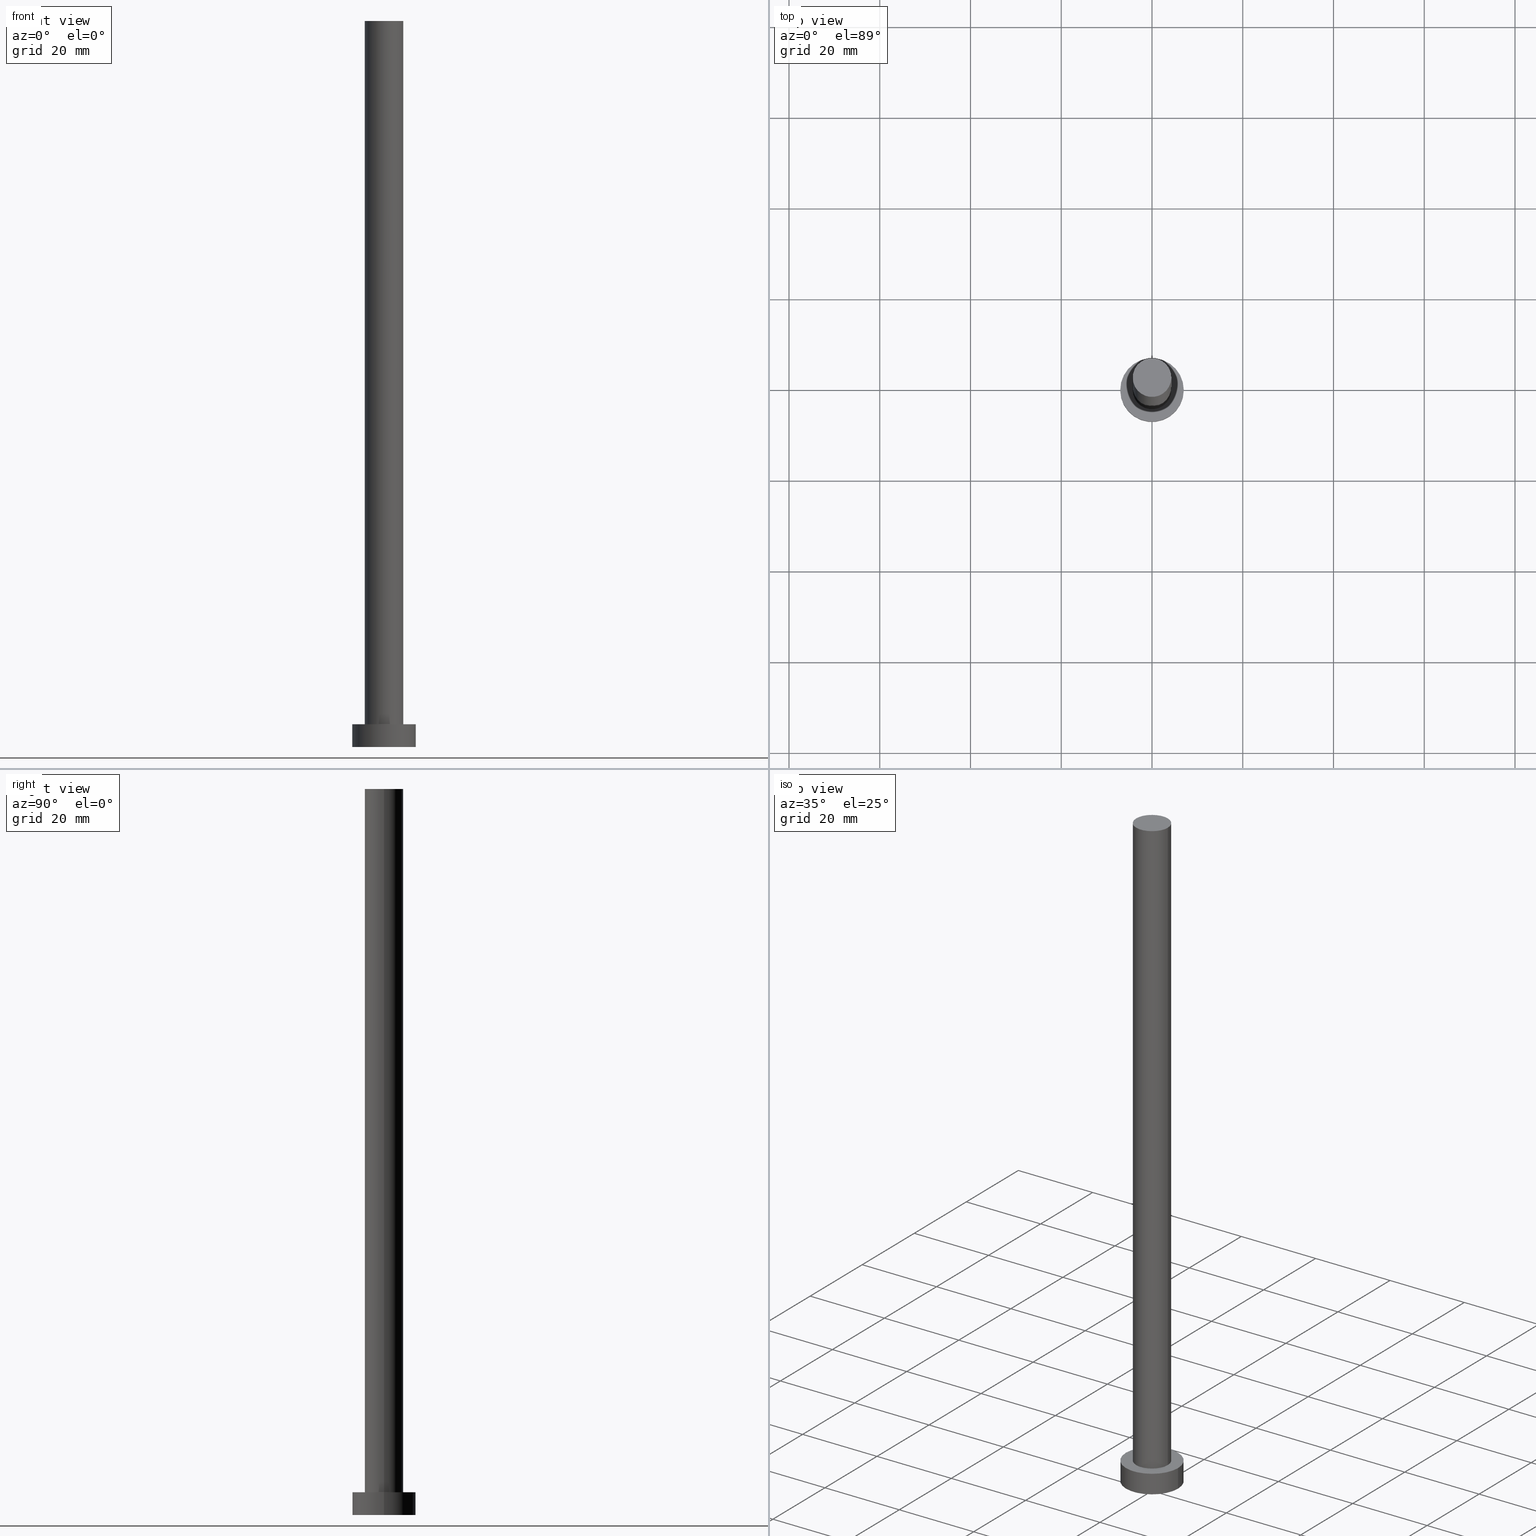
[diagram: canonical four-view strip — front | top / right | iso, engineering-drawing reading convention]
A machine part, canonical four-view strip (front | top / right | iso — engineering-drawing reading convention). The complete STEP part file that produces these views, byte-faithful:
ISO-10303-21;
HEADER;
FILE_DESCRIPTION (( 'STEP AP203' ),
    '1' );
FILE_NAME ('4055.STEP',
    '2026-02-06T12:39:14',
    ( '' ),
    ( '' ),
    'SwSTEP 2.0',
    'SolidWorks 2019',
    '' );
FILE_SCHEMA (( 'CONFIG_CONTROL_DESIGN' ));
ENDSEC;

DATA;
#1 = ORIENTED_EDGE ( 'NONE', *, *, #193, .T. ) ;
#2 = CARTESIAN_POINT ( 'NONE',  ( 0.000000000000000000, 0.000000000000000000, 160.0000000000000000 ) ) ;
#3 = VERTEX_POINT ( 'NONE', #176 ) ;
#4 = EDGE_CURVE ( 'NONE', #3, #19, #236, .T. ) ;
#5 = LOCAL_TIME ( 13, 39, 14.00000000000000000, #34 ) ;
#6 = ORIENTED_EDGE ( 'NONE', *, *, #142, .T. ) ;
#7 = DIRECTION ( 'NONE',  ( 0.000000000000000000, 0.000000000000000000, 1.000000000000000000 ) ) ;
#8 = DIRECTION ( 'NONE',  ( 0.000000000000000000, 0.000000000000000000, 1.000000000000000000 ) ) ;
#9 = EDGE_CURVE ( 'NONE', #121, #61, #216, .T. ) ;
#10 = CARTESIAN_POINT ( 'NONE',  ( 0.000000000000000000, 0.000000000000000000, 0.000000000000000000 ) ) ;
#11 = DIRECTION ( 'NONE',  ( -0.000000000000000000, -0.000000000000000000, -1.000000000000000000 ) ) ;
#12 = CIRCLE ( 'NONE', #212, 4.250000000000000000 ) ;
#13 = CARTESIAN_POINT ( 'NONE',  ( 7.000000000000000000, 8.572527594031473190E-16, 5.000000000000000000 ) ) ;
#14 = CARTESIAN_POINT ( 'NONE',  ( -4.250000000000000000, 0.000000000000000000, 160.0000000000000000 ) ) ;
#15 = SECURITY_CLASSIFICATION_LEVEL ( 'unclassified' ) ;
#16 = CIRCLE ( 'NONE', #112, 7.000000000000000000 ) ;
#17 = APPROVAL_DATE_TIME ( #192, #31 ) ;
#18 = EDGE_CURVE ( 'NONE', #153, #19, #215, .T. ) ;
#19 = VERTEX_POINT ( 'NONE', #198 ) ;
#20 = LOCAL_TIME ( 13, 39, 14.00000000000000000, #58 ) ;
#21 = ORIENTED_EDGE ( 'NONE', *, *, #203, .F. ) ;
#22 = CC_DESIGN_DATE_AND_TIME_ASSIGNMENT ( #159, #29, ( #96 ) ) ;
#23 = ORIENTED_EDGE ( 'NONE', *, *, #150, .F. ) ;
#24 = ORIENTED_EDGE ( 'NONE', *, *, #4, .T. ) ;
#25 = AXIS2_PLACEMENT_3D ( 'NONE', #131, #210, #47 ) ;
#26 = APPROVAL_ROLE ( '' ) ;
#27 = VERTEX_POINT ( 'NONE', #99 ) ;
#28 = DIRECTION ( 'NONE',  ( -0.000000000000000000, -0.000000000000000000, -1.000000000000000000 ) ) ;
#29 = DATE_TIME_ROLE ( 'creation_date' ) ;
#30 = LINE ( 'NONE', #243, #63 ) ;
#31 = APPROVAL ( #115, 'NEUR�EN�' ) ;
#32 = DIRECTION ( 'NONE',  ( 1.000000000000000000, 0.000000000000000000, 0.000000000000000000 ) ) ;
#33 = FACE_OUTER_BOUND ( 'NONE', #40, .T. ) ;
#34 = COORDINATED_UNIVERSAL_TIME_OFFSET ( 1, 0, .AHEAD. ) ;
#35 = CARTESIAN_POINT ( 'NONE',  ( 0.000000000000000000, 0.000000000000000000, 5.000000000000000000 ) ) ;
#36 = CLOSED_SHELL ( 'NONE', ( #62, #252, #221, #68, #117, #124, #232 ) ) ;
#37 = AXIS2_PLACEMENT_3D ( 'NONE', #103, #50, #225 ) ;
#38 = CYLINDRICAL_SURFACE ( 'NONE', #104, 7.000000000000000000 ) ;
#39 = EDGE_LOOP ( 'NONE', ( #141, #6 ) ) ;
#40 = EDGE_LOOP ( 'NONE', ( #239, #177, #1, #120 ) ) ;
#41 = ORIENTED_EDGE ( 'NONE', *, *, #178, .T. ) ;
#42 = ORIENTED_EDGE ( 'NONE', *, *, #87, .F. ) ;
#43 = AXIS2_PLACEMENT_3D ( 'NONE', #209, #187, #74 ) ;
#44 = PERSON_AND_ORGANIZATION ( #127, #102 ) ;
#45 = ORIENTED_EDGE ( 'NONE', *, *, #9, .F. ) ;
#46 = AXIS2_PLACEMENT_3D ( 'NONE', #10, #73, #245 ) ;
#47 = DIRECTION ( 'NONE',  ( 1.000000000000000000, 0.000000000000000000, -0.000000000000000000 ) ) ;
#48 = APPLICATION_CONTEXT ( 'configuration controlled 3d designs of mechanical parts and assemblies' ) ;
#49 = DIRECTION ( 'NONE',  ( 0.000000000000000000, 0.000000000000000000, 1.000000000000000000 ) ) ;
#50 = DIRECTION ( 'NONE',  ( 0.000000000000000000, 0.000000000000000000, 1.000000000000000000 ) ) ;
#51 = PERSON_AND_ORGANIZATION ( #127, #102 ) ;
#52 = CARTESIAN_POINT ( 'NONE',  ( 0.000000000000000000, 0.000000000000000000, 160.0000000000000000 ) ) ;
#53 = AXIS2_PLACEMENT_3D ( 'NONE', #2, #80, #71 ) ;
#54 = CALENDAR_DATE ( 2026, 6, 2 ) ;
#55 = PERSON_AND_ORGANIZATION ( #127, #102 ) ;
#56 = SHAPE_DEFINITION_REPRESENTATION ( #60, #138 ) ;
#57 = DESIGN_CONTEXT ( 'detailed design', #106, 'design' ) ;
#58 = COORDINATED_UNIVERSAL_TIME_OFFSET ( 1, 0, .AHEAD. ) ;
#59 = DIRECTION ( 'NONE',  ( 0.000000000000000000, 0.000000000000000000, 1.000000000000000000 ) ) ;
#60 = PRODUCT_DEFINITION_SHAPE ( 'NONE', 'NONE',  #96 ) ;
#61 = VERTEX_POINT ( 'NONE', #79 ) ;
#62 = ADVANCED_FACE ( 'NONE', ( #181 ), #82, .T. ) ;
#63 = VECTOR ( 'NONE', #11, 1000.000000000000000 ) ;
#64 = ORIENTED_EDGE ( 'NONE', *, *, #170, .T. ) ;
#65 = EDGE_LOOP ( 'NONE', ( #145, #69 ) ) ;
#66 = CC_DESIGN_PERSON_AND_ORGANIZATION_ASSIGNMENT ( #133, #213, ( #123 ) ) ;
#67 = AXIS2_PLACEMENT_3D ( 'NONE', #185, #28, #247 ) ;
#68 = ADVANCED_FACE ( 'NONE', ( #89, #93 ), #149, .T. ) ;
#69 = ORIENTED_EDGE ( 'NONE', *, *, #193, .F. ) ;
#70 =( NAMED_UNIT ( * ) SI_UNIT ( $, .STERADIAN. ) SOLID_ANGLE_UNIT ( ) );
#71 = DIRECTION ( 'NONE',  ( -1.000000000000000000, 0.000000000000000000, 0.000000000000000000 ) ) ;
#72 = AXIS2_PLACEMENT_3D ( 'NONE', #52, #249, #208 ) ;
#73 = DIRECTION ( 'NONE',  ( 0.000000000000000000, 0.000000000000000000, 1.000000000000000000 ) ) ;
#74 = DIRECTION ( 'NONE',  ( 1.000000000000000000, 0.000000000000000000, -0.000000000000000000 ) ) ;
#75 =( NAMED_UNIT ( * ) PLANE_ANGLE_UNIT ( ) SI_UNIT ( $, .RADIAN. ) );
#76 = APPROVAL_PERSON_ORGANIZATION ( #107, #77, #95 ) ;
#77 = APPROVAL ( #186, 'NEUR�EN�' ) ;
#78 = CARTESIAN_POINT ( 'NONE',  ( 0.000000000000000000, 0.000000000000000000, 5.000000000000000000 ) ) ;
#79 = CARTESIAN_POINT ( 'NONE',  ( 7.000000000000000000, 8.572527594031473190E-16, 0.000000000000000000 ) ) ;
#80 = DIRECTION ( 'NONE',  ( -0.000000000000000000, -0.000000000000000000, -1.000000000000000000 ) ) ;
#81 = CIRCLE ( 'NONE', #37, 4.250000000000000000 ) ;
#82 = CYLINDRICAL_SURFACE ( 'NONE', #53, 4.250000000000000000 ) ;
#83 = LOCAL_TIME ( 13, 39, 14.00000000000000000, #230 ) ;
#84 = MECHANICAL_CONTEXT ( 'NONE', #48, 'mechanical' ) ;
#85 = APPROVAL_STATUS ( 'not_yet_approved' ) ;
#86 = EDGE_LOOP ( 'NONE', ( #45, #42, #64, #41 ) ) ;
#87 = EDGE_CURVE ( 'NONE', #154, #121, #126, .T. ) ;
#88 = FACE_OUTER_BOUND ( 'NONE', #184, .T. ) ;
#89 = FACE_BOUND ( 'NONE', #122, .T. ) ;
#90 = DIRECTION ( 'NONE',  ( 1.000000000000000000, 0.000000000000000000, -0.000000000000000000 ) ) ;
#91 = DIRECTION ( 'NONE',  ( 0.000000000000000000, 0.000000000000000000, 1.000000000000000000 ) ) ;
#92 = APPROVAL_DATE_TIME ( #183, #241 ) ;
#93 = FACE_OUTER_BOUND ( 'NONE', #39, .T. ) ;
#94 = CALENDAR_DATE ( 2026, 6, 2 ) ;
#95 = APPROVAL_ROLE ( '' ) ;
#96 = PRODUCT_DEFINITION ( 'NEZN�M�', '', #123, #57 ) ;
#97 = APPROVAL_PERSON_ORGANIZATION ( #196, #31, #135 ) ;
#98 = EDGE_LOOP ( 'NONE', ( #140, #237, #234, #23 ) ) ;
#99 = CARTESIAN_POINT ( 'NONE',  ( -7.000000000000000000, 0.000000000000000000, 0.000000000000000000 ) ) ;
#100 = DIRECTION ( 'NONE',  ( 1.000000000000000000, 0.000000000000000000, 0.000000000000000000 ) ) ;
#101 = CARTESIAN_POINT ( 'NONE',  ( 7.000000000000000000, 8.572527594031473190E-16, 5.000000000000000000 ) ) ;
#102 = ORGANIZATION ( 'NEUR�EN�', 'NEUR�EN�', '' ) ;
#103 = CARTESIAN_POINT ( 'NONE',  ( 0.000000000000000000, 0.000000000000000000, 5.000000000000000000 ) ) ;
#104 = AXIS2_PLACEMENT_3D ( 'NONE', #204, #110, #128 ) ;
#105 = APPLICATION_PROTOCOL_DEFINITION ( 'international standard', 'config_control_design', 1994, #106 ) ;
#106 = APPLICATION_CONTEXT ( 'configuration controlled 3d designs of mechanical parts and assemblies' ) ;
#107 = PERSON_AND_ORGANIZATION ( #127, #102 ) ;
#108 = DIRECTION ( 'NONE',  ( 1.000000000000000000, 0.000000000000000000, 0.000000000000000000 ) ) ;
#109 = LINE ( 'NONE', #188, #143 ) ;
#110 = DIRECTION ( 'NONE',  ( -0.000000000000000000, -0.000000000000000000, -1.000000000000000000 ) ) ;
#111 = CALENDAR_DATE ( 2026, 6, 2 ) ;
#112 = AXIS2_PLACEMENT_3D ( 'NONE', #113, #49, #162 ) ;
#113 = CARTESIAN_POINT ( 'NONE',  ( 0.000000000000000000, 0.000000000000000000, 5.000000000000000000 ) ) ;
#114 = APPLICATION_PROTOCOL_DEFINITION ( 'international standard', 'config_control_design', 1994, #48 ) ;
#115 = APPROVAL_STATUS ( 'not_yet_approved' ) ;
#116 = PERSON_AND_ORGANIZATION_ROLE ( 'classification_officer' ) ;
#117 = ADVANCED_FACE ( 'NONE', ( #246 ), #165, .F. ) ;
#118 = VECTOR ( 'NONE', #119, 1000.000000000000000 ) ;
#119 = DIRECTION ( 'NONE',  ( -0.000000000000000000, -0.000000000000000000, -1.000000000000000000 ) ) ;
#120 = ORIENTED_EDGE ( 'NONE', *, *, #170, .F. ) ;
#121 = VERTEX_POINT ( 'NONE', #13 ) ;
#122 = EDGE_LOOP ( 'NONE', ( #223, #155 ) ) ;
#123 = PRODUCT_DEFINITION_FORMATION_WITH_SPECIFIED_SOURCE ( 'LIBOVOLN�', '', #156, .NOT_KNOWN. ) ;
#124 = ADVANCED_FACE ( 'NONE', ( #168 ), #228, .T. ) ;
#125 = PERSON_AND_ORGANIZATION_ROLE ( 'design_owner' ) ;
#126 = CIRCLE ( 'NONE', #219, 7.000000000000000000 ) ;
#127 = PERSON ( 'NEUR�EN�', 'NEUR�EN�', 'NEUR�EN�', ('NEUR�EN�'), ('NEUR�EN�'), ('NEUR�EN�') ) ;
#128 = DIRECTION ( 'NONE',  ( -1.000000000000000000, 0.000000000000000000, 0.000000000000000000 ) ) ;
#129 = CARTESIAN_POINT ( 'NONE',  ( -7.000000000000000000, 0.000000000000000000, 5.000000000000000000 ) ) ;
#130 = PRODUCT_RELATED_PRODUCT_CATEGORY ( 'detail', '', ( #156 ) ) ;
#131 = CARTESIAN_POINT ( 'NONE',  ( 0.000000000000000000, 0.000000000000000000, 160.0000000000000000 ) ) ;
#132 = CARTESIAN_POINT ( 'NONE',  ( 0.000000000000000000, 0.000000000000000000, 160.0000000000000000 ) ) ;
#133 = PERSON_AND_ORGANIZATION ( #127, #102 ) ;
#134 = CC_DESIGN_SECURITY_CLASSIFICATION ( #190, ( #123 ) ) ;
#135 = APPROVAL_ROLE ( '' ) ;
#136 = EDGE_CURVE ( 'NONE', #153, #201, #206, .T. ) ;
#137 = CC_DESIGN_APPROVAL ( #241, ( #96 ) ) ;
#138 = ADVANCED_BREP_SHAPE_REPRESENTATION ( '4055', ( #205, #214 ), #164 ) ;
#139 = DIRECTION ( 'NONE',  ( -0.000000000000000000, -0.000000000000000000, -1.000000000000000000 ) ) ;
#140 = ORIENTED_EDGE ( 'NONE', *, *, #136, .F. ) ;
#141 = ORIENTED_EDGE ( 'NONE', *, *, #87, .T. ) ;
#142 = EDGE_CURVE ( 'NONE', #121, #154, #16, .T. ) ;
#143 = VECTOR ( 'NONE', #207, 1000.000000000000000 ) ;
#144 = DIRECTION ( 'NONE',  ( 0.000000000000000000, 0.000000000000000000, 1.000000000000000000 ) ) ;
#145 = ORIENTED_EDGE ( 'NONE', *, *, #178, .F. ) ;
#146 = DIRECTION ( 'NONE',  ( 1.000000000000000000, 0.000000000000000000, 0.000000000000000000 ) ) ;
#147 = CARTESIAN_POINT ( 'NONE',  ( 4.250000000000000000, 5.204748896376250699E-16, 160.0000000000000000 ) ) ;
#148 = CARTESIAN_POINT ( 'NONE',  ( 0.000000000000000000, 0.000000000000000000, 160.0000000000000000 ) ) ;
#149 = PLANE ( 'NONE',  #175 ) ;
#150 = EDGE_CURVE ( 'NONE', #201, #3, #30, .T. ) ;
#151 = DATE_TIME_ROLE ( 'classification_date' ) ;
#152 = CIRCLE ( 'NONE', #194, 7.000000000000000000 ) ;
#153 = VERTEX_POINT ( 'NONE', #147 ) ;
#154 = VERTEX_POINT ( 'NONE', #129 ) ;
#155 = ORIENTED_EDGE ( 'NONE', *, *, #199, .F. ) ;
#156 = PRODUCT ( '4055', '4055', '', ( #84 ) ) ;
#157 = DIRECTION ( 'NONE',  ( 1.000000000000000000, 0.000000000000000000, 0.000000000000000000 ) ) ;
#158 = CALENDAR_DATE ( 2026, 6, 2 ) ;
#159 = DATE_AND_TIME ( #158, #231 ) ;
#160 = ORIENTED_EDGE ( 'NONE', *, *, #150, .T. ) ;
#161 = CARTESIAN_POINT ( 'NONE',  ( 0.000000000000000000, 0.000000000000000000, 0.000000000000000000 ) ) ;
#162 = DIRECTION ( 'NONE',  ( 1.000000000000000000, 0.000000000000000000, 0.000000000000000000 ) ) ;
#163 = PLANE ( 'NONE',  #25 ) ;
#164 =( GEOMETRIC_REPRESENTATION_CONTEXT ( 3 ) GLOBAL_UNCERTAINTY_ASSIGNED_CONTEXT ( ( #254 ) ) GLOBAL_UNIT_ASSIGNED_CONTEXT ( ( #189, #75, #70 ) ) REPRESENTATION_CONTEXT ( 'NONE', 'WORKASPACE' ) );
#165 = PLANE ( 'NONE',  #43 ) ;
#166 = CYLINDRICAL_SURFACE ( 'NONE', #67, 7.000000000000000000 ) ;
#167 = PERSON_AND_ORGANIZATION ( #127, #102 ) ;
#168 = FACE_OUTER_BOUND ( 'NONE', #242, .T. ) ;
#169 = DATE_AND_TIME ( #54, #197 ) ;
#170 = EDGE_CURVE ( 'NONE', #154, #27, #109, .T. ) ;
#171 = PERSON_AND_ORGANIZATION_ROLE ( 'creator' ) ;
#172 = DATE_AND_TIME ( #94, #20 ) ;
#173 = COORDINATED_UNIVERSAL_TIME_OFFSET ( 1, 0, .AHEAD. ) ;
#174 = CC_DESIGN_PERSON_AND_ORGANIZATION_ASSIGNMENT ( #167, #248, ( #96 ) ) ;
#175 = AXIS2_PLACEMENT_3D ( 'NONE', #191, #211, #90 ) ;
#176 = CARTESIAN_POINT ( 'NONE',  ( -4.250000000000000000, 0.000000000000000000, 5.000000000000000000 ) ) ;
#177 = ORIENTED_EDGE ( 'NONE', *, *, #9, .T. ) ;
#178 = EDGE_CURVE ( 'NONE', #27, #61, #255, .T. ) ;
#179 = CARTESIAN_POINT ( 'NONE',  ( 4.250000000000000000, 5.204748896376250699E-16, 160.0000000000000000 ) ) ;
#180 = AXIS2_PLACEMENT_3D ( 'NONE', #132, #8, #32 ) ;
#181 = FACE_OUTER_BOUND ( 'NONE', #98, .T. ) ;
#182 = CARTESIAN_POINT ( 'NONE',  ( 0.000000000000000000, 0.000000000000000000, 0.000000000000000000 ) ) ;
#183 = DATE_AND_TIME ( #111, #5 ) ;
#184 = EDGE_LOOP ( 'NONE', ( #218, #200 ) ) ;
#185 = CARTESIAN_POINT ( 'NONE',  ( 0.000000000000000000, 0.000000000000000000, 5.000000000000000000 ) ) ;
#186 = APPROVAL_STATUS ( 'not_yet_approved' ) ;
#187 = DIRECTION ( 'NONE',  ( 0.000000000000000000, 0.000000000000000000, 1.000000000000000000 ) ) ;
#188 = CARTESIAN_POINT ( 'NONE',  ( -7.000000000000000000, 0.000000000000000000, 5.000000000000000000 ) ) ;
#189 =( LENGTH_UNIT ( ) NAMED_UNIT ( * ) SI_UNIT ( .MILLI., .METRE. ) );
#190 = SECURITY_CLASSIFICATION ( '', '', #15 ) ;
#191 = CARTESIAN_POINT ( 'NONE',  ( 0.000000000000000000, 0.000000000000000000, 5.000000000000000000 ) ) ;
#192 = DATE_AND_TIME ( #253, #83 ) ;
#193 = EDGE_CURVE ( 'NONE', #61, #27, #152, .T. ) ;
#194 = AXIS2_PLACEMENT_3D ( 'NONE', #161, #7, #146 ) ;
#195 = CC_DESIGN_PERSON_AND_ORGANIZATION_ASSIGNMENT ( #250, #171, ( #123 ) ) ;
#196 = PERSON_AND_ORGANIZATION ( #127, #102 ) ;
#197 = LOCAL_TIME ( 13, 39, 14.00000000000000000, #173 ) ;
#198 = CARTESIAN_POINT ( 'NONE',  ( 4.250000000000000000, 5.204748896376250699E-16, 5.000000000000000000 ) ) ;
#199 = EDGE_CURVE ( 'NONE', #19, #3, #81, .T. ) ;
#200 = ORIENTED_EDGE ( 'NONE', *, *, #136, .T. ) ;
#201 = VERTEX_POINT ( 'NONE', #14 ) ;
#202 = AXIS2_PLACEMENT_3D ( 'NONE', #78, #59, #100 ) ;
#203 = EDGE_CURVE ( 'NONE', #201, #153, #12, .T. ) ;
#204 = CARTESIAN_POINT ( 'NONE',  ( 0.000000000000000000, 0.000000000000000000, 5.000000000000000000 ) ) ;
#205 = MANIFOLD_SOLID_BREP ( 'P�idat vysunut�m3', #36 ) ;
#206 = CIRCLE ( 'NONE', #180, 4.250000000000000000 ) ;
#207 = DIRECTION ( 'NONE',  ( -0.000000000000000000, -0.000000000000000000, -1.000000000000000000 ) ) ;
#208 = DIRECTION ( 'NONE',  ( -1.000000000000000000, 0.000000000000000000, 0.000000000000000000 ) ) ;
#209 = CARTESIAN_POINT ( 'NONE',  ( 0.000000000000000000, 0.000000000000000000, 0.000000000000000000 ) ) ;
#210 = DIRECTION ( 'NONE',  ( 0.000000000000000000, 0.000000000000000000, 1.000000000000000000 ) ) ;
#211 = DIRECTION ( 'NONE',  ( 0.000000000000000000, 0.000000000000000000, 1.000000000000000000 ) ) ;
#212 = AXIS2_PLACEMENT_3D ( 'NONE', #148, #91, #157 ) ;
#213 = PERSON_AND_ORGANIZATION_ROLE ( 'design_supplier' ) ;
#214 = AXIS2_PLACEMENT_3D ( 'NONE', #182, #144, #220 ) ;
#215 = LINE ( 'NONE', #179, #118 ) ;
#216 = LINE ( 'NONE', #101, #224 ) ;
#217 = CC_DESIGN_PERSON_AND_ORGANIZATION_ASSIGNMENT ( #44, #125, ( #156 ) ) ;
#218 = ORIENTED_EDGE ( 'NONE', *, *, #203, .T. ) ;
#219 = AXIS2_PLACEMENT_3D ( 'NONE', #35, #226, #108 ) ;
#220 = DIRECTION ( 'NONE',  ( 1.000000000000000000, 0.000000000000000000, 0.000000000000000000 ) ) ;
#221 = ADVANCED_FACE ( 'NONE', ( #227 ), #166, .T. ) ;
#222 = COORDINATED_UNIVERSAL_TIME_OFFSET ( 1, 0, .AHEAD. ) ;
#223 = ORIENTED_EDGE ( 'NONE', *, *, #4, .F. ) ;
#224 = VECTOR ( 'NONE', #139, 1000.000000000000000 ) ;
#225 = DIRECTION ( 'NONE',  ( 1.000000000000000000, 0.000000000000000000, 0.000000000000000000 ) ) ;
#226 = DIRECTION ( 'NONE',  ( 0.000000000000000000, 0.000000000000000000, 1.000000000000000000 ) ) ;
#227 = FACE_OUTER_BOUND ( 'NONE', #86, .T. ) ;
#228 = CYLINDRICAL_SURFACE ( 'NONE', #72, 4.250000000000000000 ) ;
#229 = CC_DESIGN_PERSON_AND_ORGANIZATION_ASSIGNMENT ( #55, #116, ( #190 ) ) ;
#230 = COORDINATED_UNIVERSAL_TIME_OFFSET ( 1, 0, .AHEAD. ) ;
#231 = LOCAL_TIME ( 13, 39, 14.00000000000000000, #222 ) ;
#232 = ADVANCED_FACE ( 'NONE', ( #88 ), #163, .T. ) ;
#233 = APPROVAL_DATE_TIME ( #169, #77 ) ;
#234 = ORIENTED_EDGE ( 'NONE', *, *, #199, .T. ) ;
#235 = ORIENTED_EDGE ( 'NONE', *, *, #18, .F. ) ;
#236 = CIRCLE ( 'NONE', #202, 4.250000000000000000 ) ;
#237 = ORIENTED_EDGE ( 'NONE', *, *, #18, .T. ) ;
#238 = CC_DESIGN_DATE_AND_TIME_ASSIGNMENT ( #172, #151, ( #190 ) ) ;
#239 = ORIENTED_EDGE ( 'NONE', *, *, #142, .F. ) ;
#240 = CC_DESIGN_APPROVAL ( #31, ( #190 ) ) ;
#241 = APPROVAL ( #85, 'NEUR�EN�' ) ;
#242 = EDGE_LOOP ( 'NONE', ( #235, #21, #160, #24 ) ) ;
#243 = CARTESIAN_POINT ( 'NONE',  ( -4.250000000000000000, 0.000000000000000000, 160.0000000000000000 ) ) ;
#244 = APPROVAL_PERSON_ORGANIZATION ( #51, #241, #26 ) ;
#245 = DIRECTION ( 'NONE',  ( 1.000000000000000000, 0.000000000000000000, 0.000000000000000000 ) ) ;
#246 = FACE_OUTER_BOUND ( 'NONE', #65, .T. ) ;
#247 = DIRECTION ( 'NONE',  ( -1.000000000000000000, 0.000000000000000000, 0.000000000000000000 ) ) ;
#248 = PERSON_AND_ORGANIZATION_ROLE ( 'creator' ) ;
#249 = DIRECTION ( 'NONE',  ( -0.000000000000000000, -0.000000000000000000, -1.000000000000000000 ) ) ;
#250 = PERSON_AND_ORGANIZATION ( #127, #102 ) ;
#251 = CC_DESIGN_APPROVAL ( #77, ( #123 ) ) ;
#252 = ADVANCED_FACE ( 'NONE', ( #33 ), #38, .T. ) ;
#253 = CALENDAR_DATE ( 2026, 6, 2 ) ;
#254 = UNCERTAINTY_MEASURE_WITH_UNIT (LENGTH_MEASURE( 1.000000000000000082E-05 ), #189, 'distance_accuracy_value', 'NONE');
#255 = CIRCLE ( 'NONE', #46, 7.000000000000000000 ) ;
ENDSEC;
END-ISO-10303-21;
